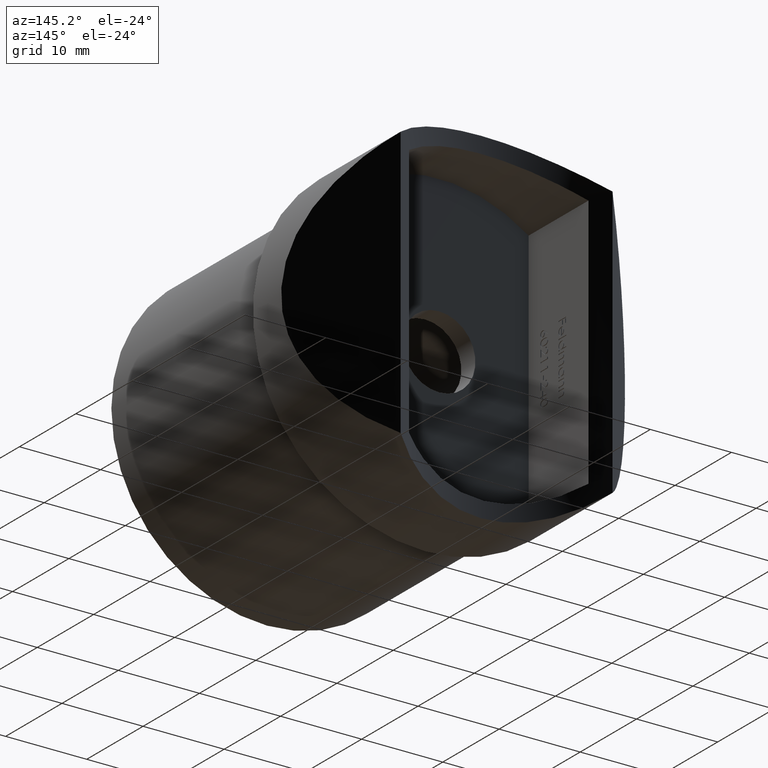
[diagram: clean part render]
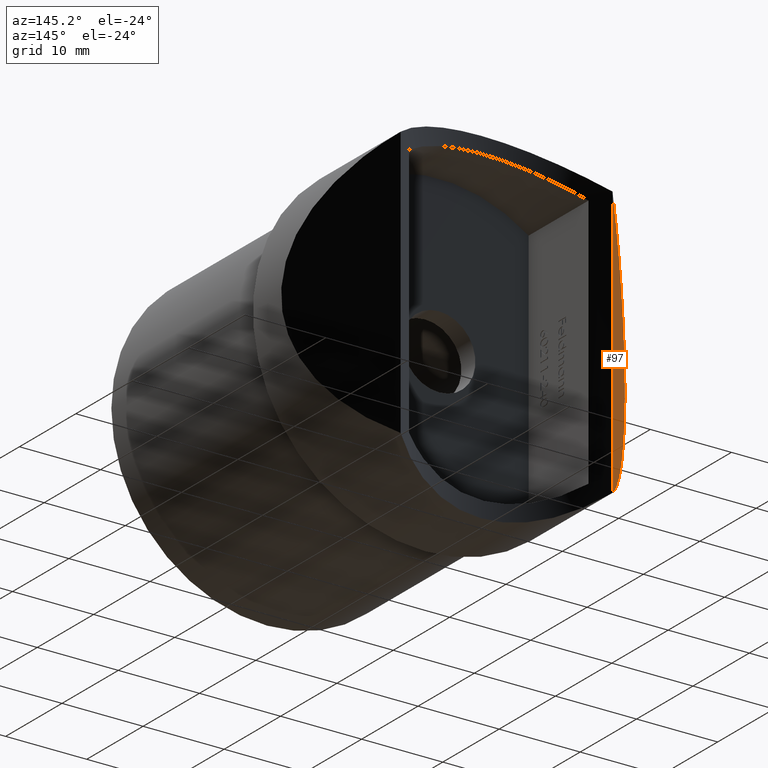
[diagram: same view with one face highlighted and labeled with its STEP entity id]
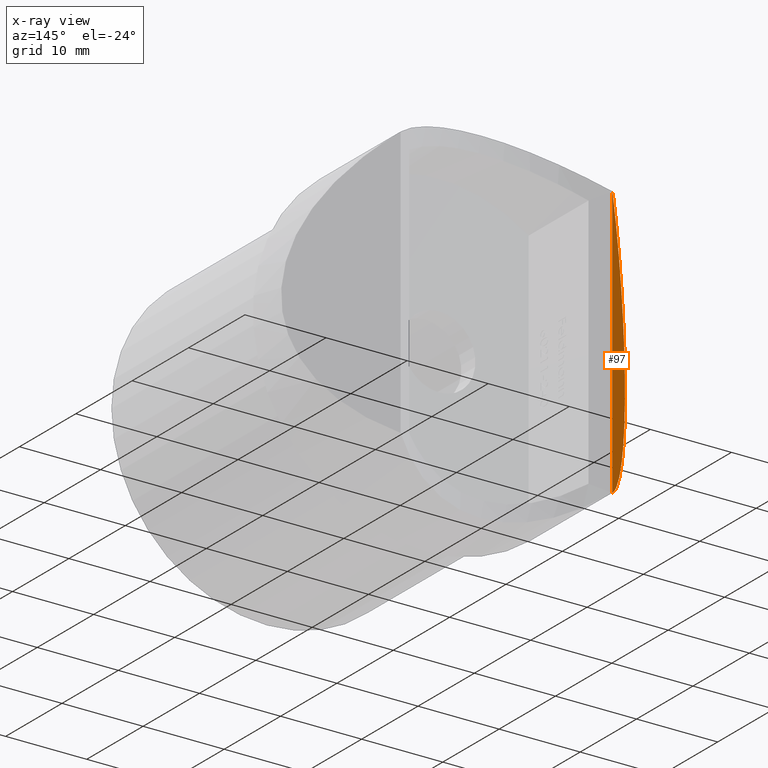
[diagram: x-ray of the same camera — body ghosted, the highlighted face saturated]
A machine part, auxiliary view. The second image highlights one B-rep face of the part: STEP entity #97.
The next image is the same camera in x-ray: the body ghosted, the highlighted face saturated — about 0% of this face is hidden behind the body in this view.
In plain terms, the highlighted planar face has unit normal (0.7593, -0.6507, 0).
Its self-contained STEP definition (entity closure, byte-faithful):
#97 = ADVANCED_FACE ( 'NONE', ( #10409 ), #8481, .F. ) ;
#248 = CARTESIAN_POINT ( 'NONE',  ( -13.05947931580735500, 14.50000000000000200, 16.70000000000000300 ) ) ;
#1397 = CARTESIAN_POINT ( 'NONE',  ( -13.05947931580735500, 14.50000000000000200, -21.19999999999999900 ) ) ;
#1753 = VECTOR ( 'NONE', #7919, 1000.000000000000000 ) ;
#1918 = CARTESIAN_POINT ( 'NONE',  ( -21.19999999999999900, 5.000000000000000000, -21.19999999999999900 ) ) ;
#5642 = ORIENTED_EDGE ( 'NONE', *, *, #5953, .F. ) ;
#5903 = CARTESIAN_POINT ( 'NONE',  ( -13.05947931580735500, 14.50000000000000200, -16.69999999999999600 ) ) ;
#5953 = EDGE_CURVE ( 'NONE', #11914, #8094, #9636, .T. ) ;
#7919 = DIRECTION ( 'NONE',  ( -0.0000000000000000000, -0.0000000000000000000, 1.000000000000000000 ) ) ;
#8094 = VERTEX_POINT ( 'NONE', #8119 ) ;
#8119 = CARTESIAN_POINT ( 'NONE',  ( -13.05947931580735500, 14.50000000000000200, -16.69999999999999600 ) ) ;
#8447 = DIRECTION ( 'NONE',  ( 0.7593488744411605000, -0.6506837072533341300, 0.0000000000000000000 ) ) ;
#8481 = PLANE ( 'NONE',  #8901 ) ;
#8674 = CARTESIAN_POINT ( 'NONE',  ( -24.84714362901428300, 0.7437778466781261900, -7.481990522155299100 ) ) ;
#8858 = EDGE_LOOP ( 'NONE', ( #5642, #10563 ) ) ;
#8901 = AXIS2_PLACEMENT_3D ( 'NONE', #1918, #8447, #10248 ) ;
#8902 = LINE ( 'NONE', #1397, #1753 ) ;
#9357 = EDGE_CURVE ( 'NONE', #8094, #11914, #8902, .T. ) ;
#9636 =( BOUNDED_CURVE ( )  B_SPLINE_CURVE ( 3, ( #11494, #11380, #8674, #5903 ),
 .UNSPECIFIED., .F., .F. ) 
 B_SPLINE_CURVE_WITH_KNOTS ( ( 4, 4 ),
 ( 5.376060487639541900, 7.190310126719630500 ),
 .UNSPECIFIED. ) 
 CURVE ( )  GEOMETRIC_REPRESENTATION_ITEM ( )  RATIONAL_B_SPLINE_CURVE ( ( 1.000000000000000000, 0.7440087835159544500, 0.7440087835159544500, 1.000000000000000000 ) ) 
 REPRESENTATION_ITEM ( '' )  );
#10248 = DIRECTION ( 'NONE',  ( 0.6506837072533341300, 0.7593488744411605000, 0.0000000000000000000 ) ) ;
#10409 = FACE_OUTER_BOUND ( 'NONE', #8858, .T. ) ;
#10563 = ORIENTED_EDGE ( 'NONE', *, *, #9357, .F. ) ;
#11380 = CARTESIAN_POINT ( 'NONE',  ( -24.84714362901428000, 0.7437778466781314000, 7.481990522155306200 ) ) ;
#11494 = CARTESIAN_POINT ( 'NONE',  ( -13.05947931580735500, 14.50000000000000200, 16.70000000000000300 ) ) ;
#11914 = VERTEX_POINT ( 'NONE', #248 ) ;